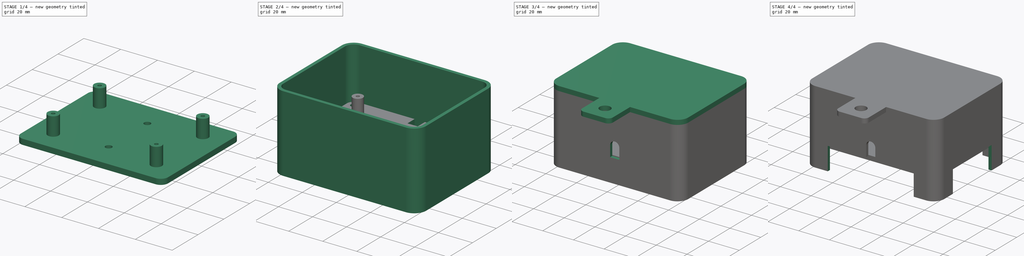
[diagram: build sequence overview — one tinted view per stage of 4, left to right]
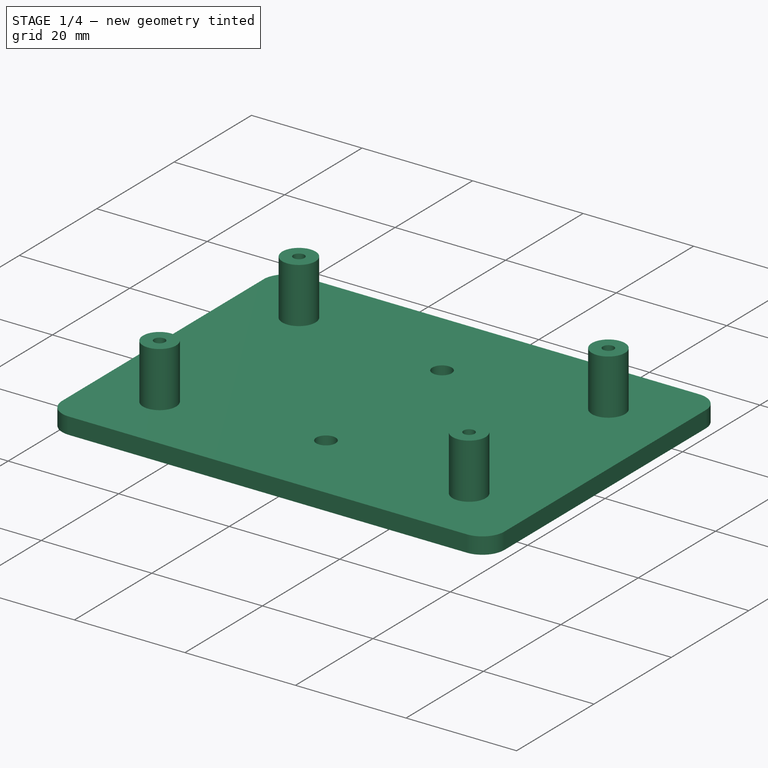
[diagram: stage 1 of 4 — iso view after this stage's code; geometry added in this stage tinted green]
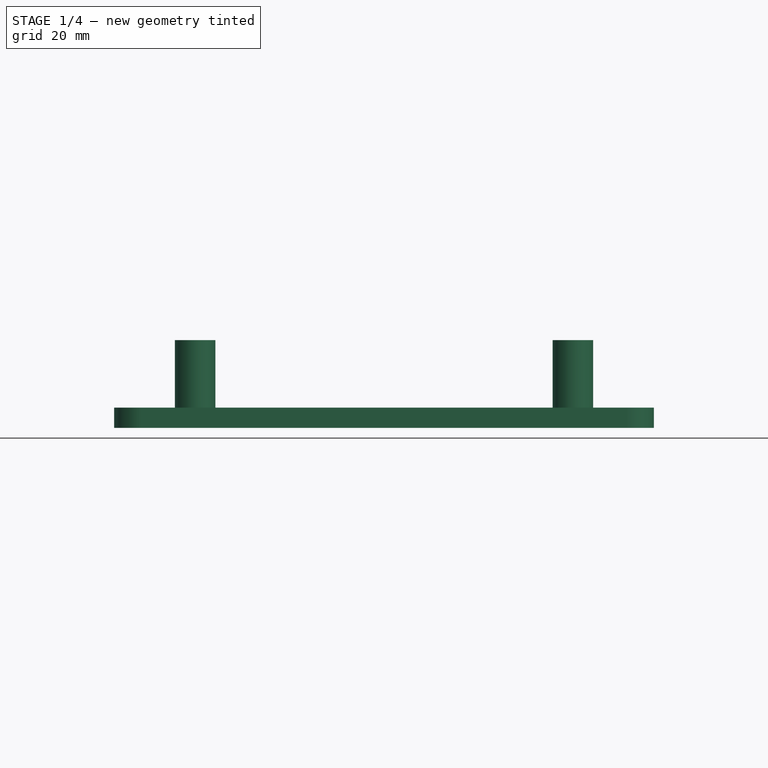
[diagram: stage 1 of 4 — front view after this stage's code; geometry added in this stage tinted green]
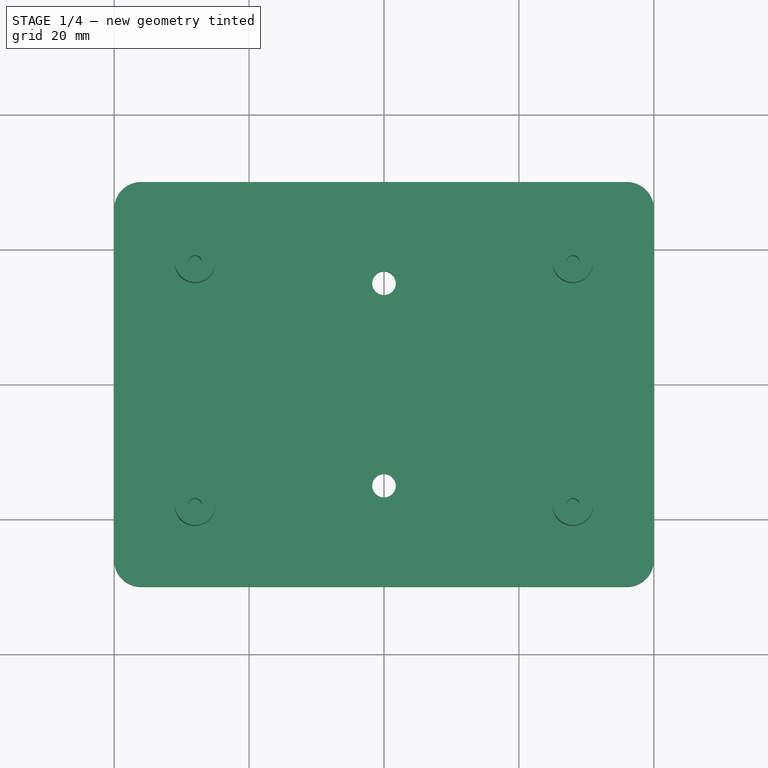
[diagram: stage 1 of 4 — top view after this stage's code; geometry added in this stage tinted green]
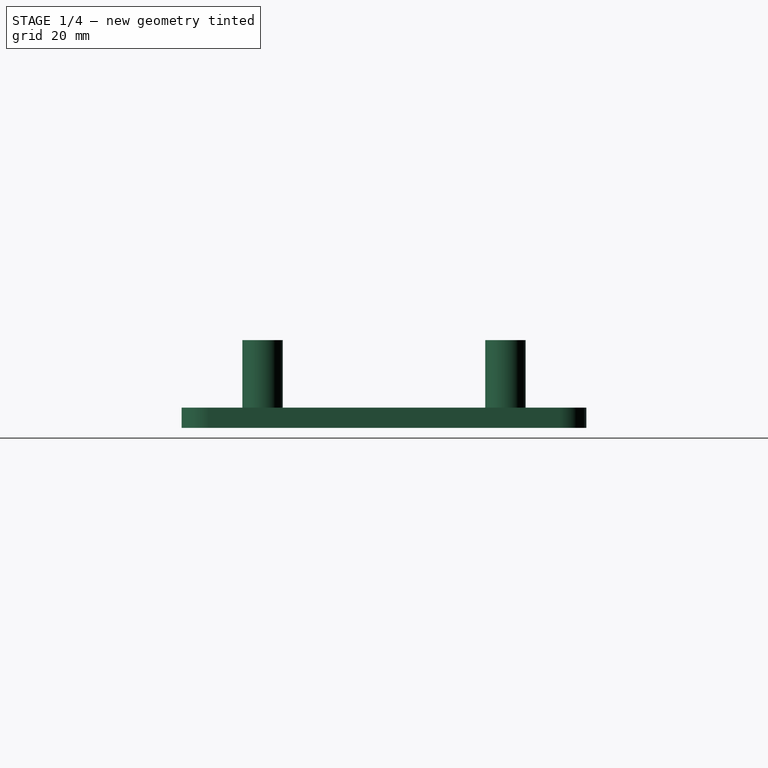
[diagram: stage 1 of 4 — right view after this stage's code; geometry added in this stage tinted green]
FCSTD DOCUMENT  (FreeCAD 1.0R39109 (Git))
Label: CellLora
License: All rights reserved
LicenseURL: https://en.wikipedia.org/wiki/All_rights_reserved
objects: Sketcher::SketchObject×13, PartDesign::Pocket×7, PartDesign::Pad×6, PartDesign::Body×2
note: 67 computed .brp shape members not serialized (recipe doc carries the construction recipe); baked Part::Feature solids carry a one-line shape summary decoded from their .brp

FEATURE [Sketcher::SketchObject] Sketch
  ArcFitTolerance = 1e-06
  AttachmentSupport = -> [XY_Plane003]
  FullyConstrained = true
  MakeInternals = false
  MapMode = 5
  sketch-geometry (14):
    g0: LineSegment StartX=-40 StartY=26 StartZ=0 EndX=-40 EndY=-26 EndZ=0
    g1: LineSegment StartX=-36 StartY=-30 StartZ=0 EndX=36 EndY=-30 EndZ=0
    g2: LineSegment StartX=40 StartY=-26 StartZ=0 EndX=40 EndY=26 EndZ=0
    g3: LineSegment StartX=36 StartY=30 StartZ=0 EndX=-36 EndY=30 EndZ=0
    g4: ArcOfCircle CenterX=-36 CenterY=26 CenterZ=0 NormalX=0 NormalY=0 NormalZ=1 AngleXU=0 Radius=4 StartAngle=1.5708 EndAngle=3.14159
    g5: ArcOfCircle CenterX=-36 CenterY=-26 CenterZ=0 NormalX=0 NormalY=0 NormalZ=1 AngleXU=0 Radius=4 StartAngle=3.14159 EndAngle=4.71239
    g6: ArcOfCircle CenterX=36 CenterY=-26 CenterZ=0 NormalX=0 NormalY=0 NormalZ=1 AngleXU=0 Radius=4 StartAngle=4.71239 EndAngle=6.28319
    g7: ArcOfCircle CenterX=36 CenterY=26 CenterZ=0 NormalX=0 NormalY=0 NormalZ=1 AngleXU=0 Radius=4 StartAngle=-3.082e-13 EndAngle=1.5708
    g8: GeomPoint [constr] X=-40 Y=30 Z=0
    g9: GeomPoint [constr] X=40 Y=-30 Z=0
    g10: LineSegment [constr] StartX=0 StartY=15 StartZ=0 EndX=0 EndY=-15 EndZ=0
    g11: Circle CenterX=0 CenterY=15 CenterZ=0 NormalX=0 NormalY=0 NormalZ=1 AngleXU=0 Radius=1.75
    g12: Circle CenterX=0 CenterY=-15 CenterZ=0 NormalX=0 NormalY=0 NormalZ=1 AngleXU=0 Radius=1.75
    g13: GeomPoint X=0 Y=0 Z=0
  constraints (33):
    c: Tangent(g0,g4) = -1.5708
    c: Tangent(g0,g5) = -1.5708
    c: Tangent(g1,g5) = -1.5708
    c: Tangent(g1,g6) = -1.5708
    c: Tangent(g2,g6) = -1.5708
    c: Tangent(g2,g7) = -1.5708
    c: Tangent(g3,g7) = -1.5708
    c: Tangent(g3,g4) = -1.5708
    c: Vertical(g0)
    c: Vertical(g2)
    c: Horizontal(g1)
    c: Horizontal(g3)
    c: Equal(g4,g5)
    c: Equal(g5,g6)
    c: Equal(g6,g7)
    c: PointOnObject(g8,g0)
    c: PointOnObject(g8,g3)
    c: PointOnObject(g9,g1)
    c: PointOnObject(g9,g2)
    c: PointOnObject(g10,g-2)
    c: PointOnObject(g10,g-2)
    c: Coincident(g11,g10)
    c: Coincident(g12,g10)
    c: Equal(g11,g12)
    c: Diameter(g11) = 3.5
    c: Distance(g10) = 30
    c: Radius(g7) = 4
    c: Symmetric(g10,g10,g13)
    c: DistanceY(g-1,g13) = 0
    c: DistanceX(g9) = 40
    c: DistanceY(g9) = -30
    c: DistanceX(g8,g-1) = 40
    c: DistanceY(g13,g8) = 30
FEATURE [PartDesign::Pad] Pad
  Direction = (0,0,1)
  Length = 3
  Length2 = 10
  Profile = -> Sketch
  ReferenceAxis = -> Sketch [N_Axis]
  Reversed = true
  Suppressed = false
  Type = 0
FEATURE [Sketcher::SketchObject] Sketch001
  ArcFitTolerance = 1e-06
  AttachmentSupport = -> [XY_Plane003]
  FullyConstrained = true
  MakeInternals = false
  MapMode = 5
  sketch-geometry (8):
    g0: LineSegment [constr] StartX=-28 StartY=18 StartZ=0 EndX=-28 EndY=-18 EndZ=0
    g1: LineSegment [constr] StartX=-28 StartY=-18 StartZ=0 EndX=28 EndY=-18 EndZ=0
    g2: LineSegment [constr] StartX=28 StartY=-18 StartZ=0 EndX=28 EndY=18 EndZ=0
    g3: LineSegment [constr] StartX=28 StartY=18 StartZ=0 EndX=-28 EndY=18 EndZ=0
    g4: Circle CenterX=28 CenterY=18 CenterZ=0 NormalX=0 NormalY=0 NormalZ=1 AngleXU=0 Radius=3
    g5: Circle CenterX=28 CenterY=-18 CenterZ=0 NormalX=0 NormalY=0 NormalZ=1 AngleXU=0 Radius=3
    g6: Circle CenterX=-28 CenterY=-18 CenterZ=0 NormalX=0 NormalY=0 NormalZ=1 AngleXU=0 Radius=3
    g7: Circle CenterX=-28 CenterY=18 CenterZ=0 NormalX=0 NormalY=0 NormalZ=1 AngleXU=0 Radius=3
  constraints (19):
    c: Coincident(g0,g1)
    c: Coincident(g1,g2)
    c: Coincident(g2,g3)
    c: Coincident(g3,g0)
    c: Vertical(g0)
    c: Vertical(g2)
    c: Horizontal(g1)
    c: Horizontal(g3)
    c: DistanceX(g3,g3) = 56
    c: DistanceY(g0,g0) = 36
    c: Symmetric(g0,g1,g-1)
    c: Coincident(g4,g2)
    c: Coincident(g5,g1)
    c: Coincident(g6,g0)
    c: Coincident(g7,g0)
    c: Equal(g7,g4)
    c: Equal(g4,g5)
    c: Equal(g5,g6)
    c: Diameter(g4) = 6
FEATURE [PartDesign::Pad] Pad001
  BaseFeature = -> Pad
  Direction = (0,0,1)
  Length = 10
  Length2 = 10
  Profile = -> Sketch001
  ReferenceAxis = -> Sketch001 [N_Axis]
  Suppressed = false
  Type = 0
FEATURE [Sketcher::SketchObject] Sketch002
  ArcFitTolerance = 1e-06
  AttachmentSupport = -> [XY_Plane003]
  FullyConstrained = true
  MakeInternals = false
  MapMode = 5
  sketch-geometry (8):
    g0: LineSegment [constr] StartX=-28 StartY=18 StartZ=0 EndX=-28 EndY=-18 EndZ=0
    g1: LineSegment [constr] StartX=-28 StartY=-18 StartZ=0 EndX=28 EndY=-18 EndZ=0
    g2: LineSegment [constr] StartX=28 StartY=-18 StartZ=0 EndX=28 EndY=18 EndZ=0
    g3: LineSegment [constr] StartX=28 StartY=18 StartZ=0 EndX=-28 EndY=18 EndZ=0
    g4: Circle CenterX=28 CenterY=18 CenterZ=0 NormalX=0 NormalY=0 NormalZ=1 AngleXU=0 Radius=1
    g5: Circle CenterX=28 CenterY=-18 CenterZ=0 NormalX=0 NormalY=0 NormalZ=1 AngleXU=0 Radius=1
    g6: Circle CenterX=-28 CenterY=-18 CenterZ=0 NormalX=0 NormalY=0 NormalZ=1 AngleXU=0 Radius=1
    g7: Circle CenterX=-28 CenterY=18 CenterZ=0 NormalX=0 NormalY=0 NormalZ=1 AngleXU=0 Radius=1
  constraints (19):
    c: Coincident(g0,g1)
    c: Coincident(g1,g2)
    c: Coincident(g2,g3)
    c: Coincident(g3,g0)
    c: Vertical(g0)
    c: Vertical(g2)
    c: Horizontal(g1)
    c: Horizontal(g3)
    c: DistanceX(g3,g3) = 56
    c: DistanceY(g0,g0) = 36
    c: Symmetric(g0,g1,g-1)
    c: Coincident(g4,g2)
    c: Coincident(g5,g1)
    c: Coincident(g6,g0)
    c: Coincident(g7,g0)
    c: Equal(g7,g4)
    c: Equal(g4,g5)
    c: Equal(g5,g6)
    c: Diameter(g4) = 2
FEATURE [PartDesign::Pocket] Pocket
  BaseFeature = -> Pad001
  Direction = (0,0,-1)
  Length = 10
  Length2 = 5
  Profile = -> Sketch002
  ReferenceAxis = -> Sketch002 [N_Axis]
  Reversed = true
  Suppressed = false
  Type = 0
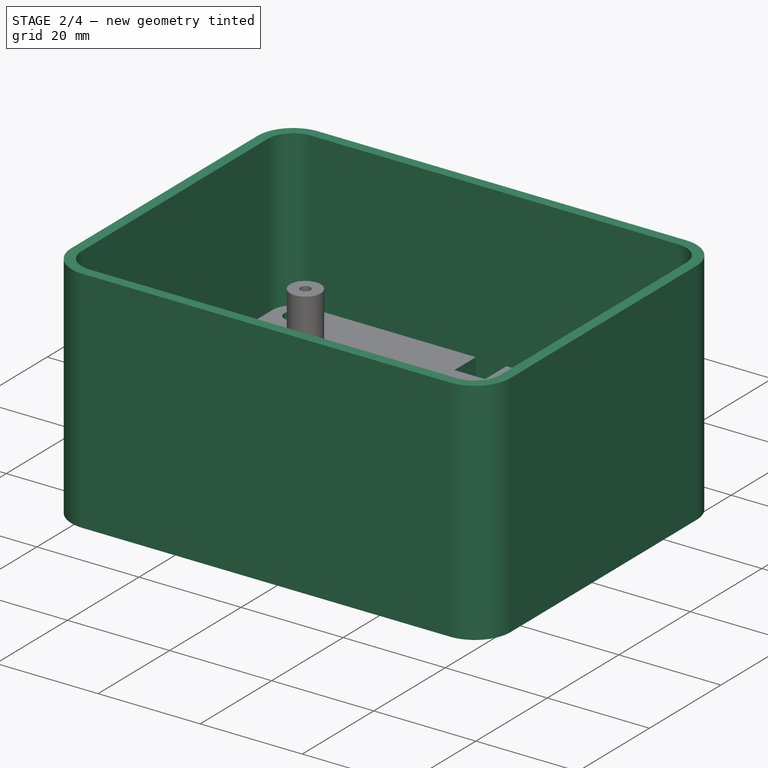
[diagram: stage 2 of 4 — iso view after this stage's code; geometry added in this stage tinted green]
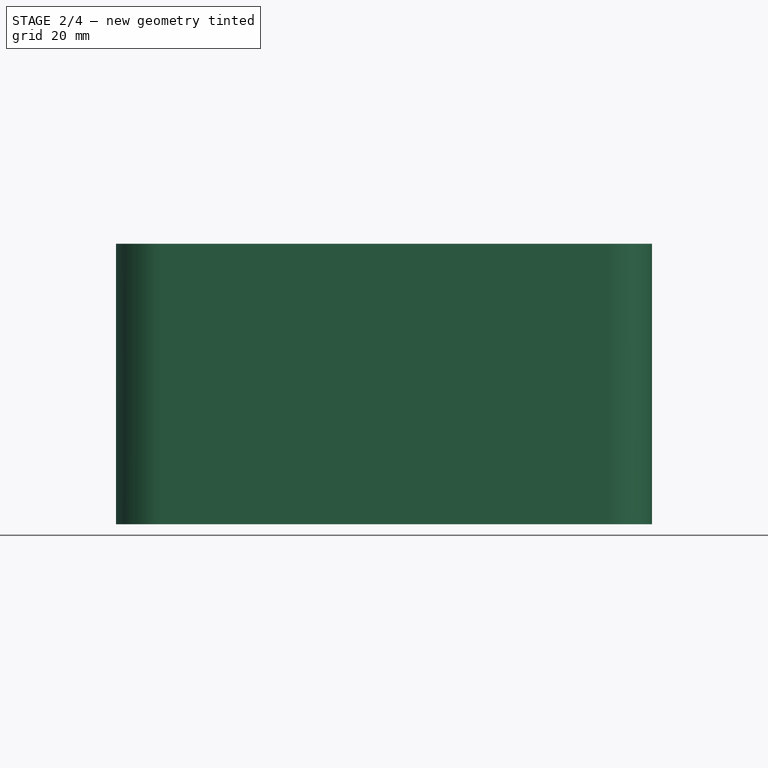
[diagram: stage 2 of 4 — front view after this stage's code; geometry added in this stage tinted green]
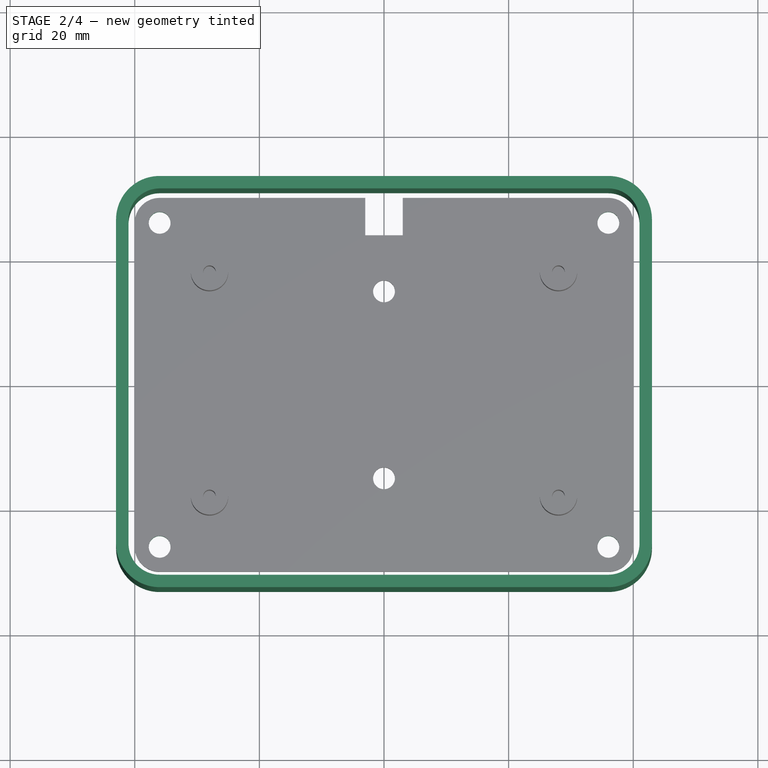
[diagram: stage 2 of 4 — top view after this stage's code; geometry added in this stage tinted green]
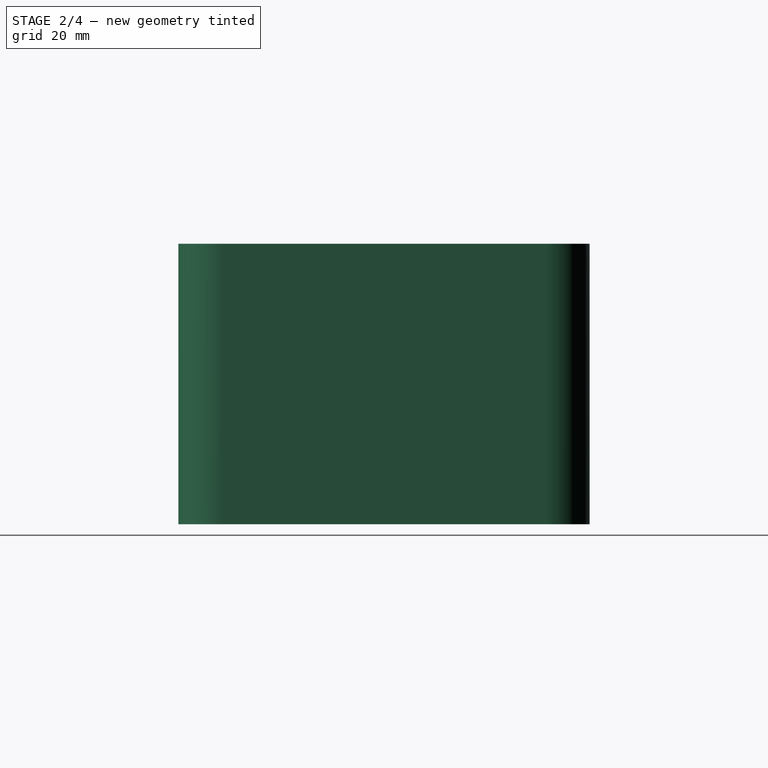
[diagram: stage 2 of 4 — right view after this stage's code; geometry added in this stage tinted green]
FEATURE [Sketcher::SketchObject] Sketch004
  ArcFitTolerance = 1e-06
  AttachmentOffset = pos=(0,0,30) rot=(0,0,1;0rad)
  AttachmentSupport = -> [XY_Plane004]
  FullyConstrained = true
  MakeInternals = false
  MapMode = 5
  Placement = pos=(0,0,30) rot=(0,0,1;0rad)
  sketch-geometry (20):
    g0: LineSegment StartX=-41 StartY=26 StartZ=0 EndX=-41 EndY=-26 EndZ=0
    g1: LineSegment StartX=-36 StartY=-31 StartZ=0 EndX=36 EndY=-31 EndZ=0
    g2: LineSegment StartX=41 StartY=-26 StartZ=0 EndX=41 EndY=26 EndZ=0
    g3: LineSegment StartX=36 StartY=31 StartZ=0 EndX=-36 EndY=31 EndZ=0
    g4: ArcOfCircle CenterX=-36 CenterY=26 CenterZ=0 NormalX=0 NormalY=0 NormalZ=1 AngleXU=0 Radius=5 StartAngle=1.5708 EndAngle=3.14159
    g5: ArcOfCircle CenterX=-36 CenterY=-26 CenterZ=0 NormalX=0 NormalY=0 NormalZ=1 AngleXU=0 Radius=5 StartAngle=3.14159 EndAngle=4.71239
    g6: ArcOfCircle CenterX=36 CenterY=-26 CenterZ=0 NormalX=0 NormalY=0 NormalZ=1 AngleXU=0 Radius=5 StartAngle=4.71239 EndAngle=6.28319
    g7: ArcOfCircle CenterX=36 CenterY=26 CenterZ=0 NormalX=0 NormalY=0 NormalZ=1 AngleXU=0 Radius=5 StartAngle=0 EndAngle=1.5708
    g8: GeomPoint [constr] X=-41 Y=31 Z=0
    g9: GeomPoint [constr] X=41 Y=-31 Z=0
    g10: LineSegment StartX=-43 StartY=26 StartZ=0 EndX=-43 EndY=-26 EndZ=0
    g11: LineSegment StartX=-36 StartY=-33 StartZ=0 EndX=36 EndY=-33 EndZ=0
    g12: LineSegment StartX=43 StartY=-26 StartZ=0 EndX=43 EndY=26 EndZ=0
    g13: LineSegment StartX=36 StartY=33 StartZ=0 EndX=-36 EndY=33 EndZ=0
    g14: ArcOfCircle CenterX=-36 CenterY=26 CenterZ=0 NormalX=0 NormalY=0 NormalZ=1 AngleXU=0 Radius=7 StartAngle=1.5708 EndAngle=3.14159
    g15: ArcOfCircle CenterX=-36 CenterY=-26 CenterZ=0 NormalX=0 NormalY=0 NormalZ=1 AngleXU=0 Radius=7 StartAngle=3.14159 EndAngle=4.71239
    g16: ArcOfCircle CenterX=36 CenterY=-26 CenterZ=0 NormalX=0 NormalY=0 NormalZ=1 AngleXU=0 Radius=7 StartAngle=4.71239 EndAngle=6.28319
    g17: ArcOfCircle CenterX=36 CenterY=26 CenterZ=0 NormalX=0 NormalY=0 NormalZ=1 AngleXU=0 Radius=7 StartAngle=2e-16 EndAngle=1.5708
    g18: GeomPoint [constr] X=-43 Y=33 Z=0
    g19: GeomPoint [constr] X=43 Y=-33 Z=0
  constraints (46):
    c: Tangent(g0,g4) = -1.5708
    c: Tangent(g0,g5) = -1.5708
    c: Tangent(g1,g5) = -1.5708
    c: Tangent(g1,g6) = -1.5708
    c: Tangent(g2,g6) = -1.5708
    c: Tangent(g2,g7) = -1.5708
    c: Tangent(g3,g7) = -1.5708
    c: Tangent(g3,g4) = -1.5708
    c: Vertical(g0)
    c: Vertical(g2)
    c: Horizontal(g1)
    c: Horizontal(g3)
    c: Equal(g4,g5)
    c: Equal(g5,g6)
    c: Equal(g6,g7)
    c: PointOnObject(g8,g0)
    c: PointOnObject(g8,g3)
    c: PointOnObject(g9,g1)
    c: PointOnObject(g9,g2)
    c: Radius(g7) = 5
    c: DistanceX(g8) = -41
    c: DistanceY(g8) = 31
    c: DistanceX(g9) = 41
    c: DistanceY(g9) = -31
    c: Tangent(g10,g14) = -1.5708
    c: Tangent(g10,g15) = -1.5708
    c: Tangent(g11,g15) = -1.5708
    c: Tangent(g11,g16) = -1.5708
    c: Tangent(g12,g16) = -1.5708
    c: Tangent(g12,g17) = -1.5708
    c: Tangent(g13,g17) = -1.5708
    c: Tangent(g13,g14) = -1.5708
    c: Vertical(g10)
    c: Vertical(g12)
    c: Horizontal(g11)
    c: Horizontal(g13)
    c: Equal(g14,g15)
    c: Equal(g15,g16)
    c: Equal(g16,g17)
    c: PointOnObject(g18,g10)
    c: PointOnObject(g18,g13)
    c: PointOnObject(g19,g11)
    c: PointOnObject(g19,g12)
    c: Radius(g17) = 7
    c: Coincident(g16,g6)
    c: Coincident(g14,g4)
FEATURE [PartDesign::Pad] Pad003
  Direction = (0,0,1)
  Length = 45
  Length2 = 10
  Profile = -> Sketch004
  ReferenceAxis = -> Sketch004 [N_Axis]
  Reversed = true
  Suppressed = false
  Type = 0
FEATURE [PartDesign::Pocket] Pocket003
  BaseFeature = -> Pocket
  Direction = (0,0,-1)
  Length = 3
  Length2 = 5
  Profile = -> Sketch009
  ReferenceAxis = -> Sketch009 [N_Axis]
  Suppressed = false
  Type = 0
FEATURE [PartDesign::Body] Body004  label="Top"
  AllowCompound = false
  Group = -> [Sketch004,Pad003,Sketch005,Pad004,Sketch006,Pad005,Sketch007,Pocket001,Sketch008,Pocket002,Sketch010,Pad007,Sketch011,Pocket004,Sketch012,Pocket005]
  Origin = -> Origin004
  Placement = pos=(0,0,-5) rot=(0,0,1;0rad)
  Tip = -> Pocket005
FEATURE [Sketcher::SketchObject] Sketch013
  ArcFitTolerance = 1e-06
  AttachmentSupport = -> [XY_Plane003]
  FullyConstrained = true
  MakeInternals = false
  MapMode = 5
  sketch-geometry (5):
    g0: LineSegment StartX=-3 StartY=30 StartZ=0 EndX=-3 EndY=24 EndZ=0
    g1: LineSegment StartX=-3 StartY=24 StartZ=0 EndX=3 EndY=24 EndZ=0
    g2: LineSegment StartX=3 StartY=24 StartZ=0 EndX=3 EndY=30 EndZ=0
    g3: LineSegment StartX=3 StartY=30 StartZ=0 EndX=-3 EndY=30 EndZ=0
    g4: GeomPoint X=0 Y=30 Z=0
  constraints (13):
    c: Coincident(g0,g1)
    c: Coincident(g1,g2)
    c: Coincident(g2,g3)
    c: Coincident(g3,g0)
    c: Vertical(g0)
    c: Vertical(g2)
    c: Horizontal(g1)
    c: Horizontal(g3)
    c: Symmetric(g3,g3,g4)
    c: PointOnObject(g4,g-2)
    c: DistanceX(g1,g1) = 6
    c: DistanceY(g2,g2) = 6
    c: DistanceY(g-1,g4) = 30
FEATURE [PartDesign::Pocket] Pocket006
  BaseFeature = -> Pocket003
  Direction = (0,0,-1)
  Length = 5
  Length2 = 5
  Profile = -> Sketch013
  ReferenceAxis = -> Sketch013 [N_Axis]
  Suppressed = false
  Type = 0
FEATURE [PartDesign::Body] Body003  label="Base"
  AllowCompound = false
  Group = -> [Sketch,Pad,Sketch001,Pad001,Sketch002,Pocket,Sketch009,Pocket003,Sketch013,Pocket006]
  Origin = -> Origin003
  Tip = -> Pocket006
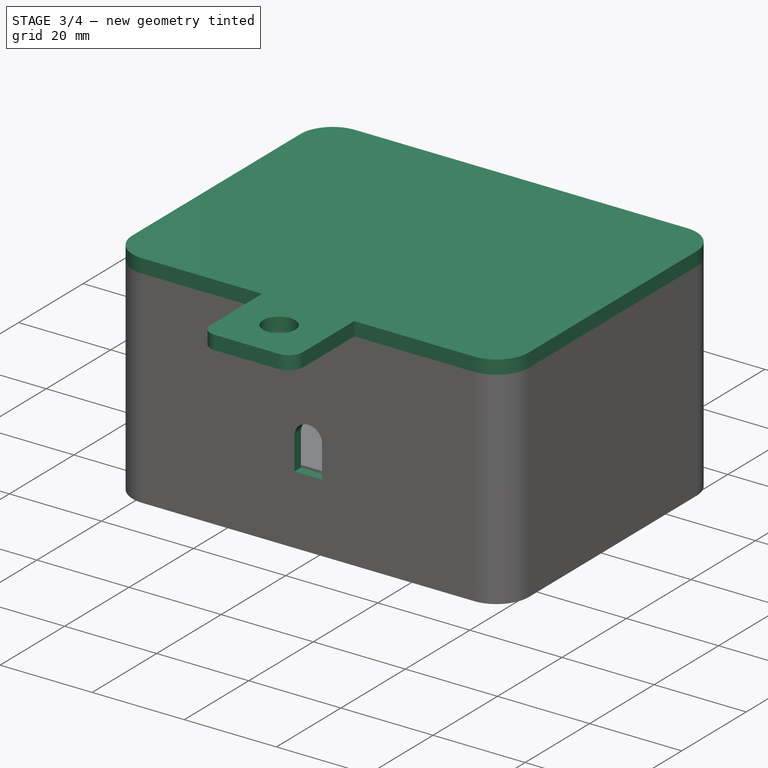
[diagram: stage 3 of 4 — iso view after this stage's code; geometry added in this stage tinted green]
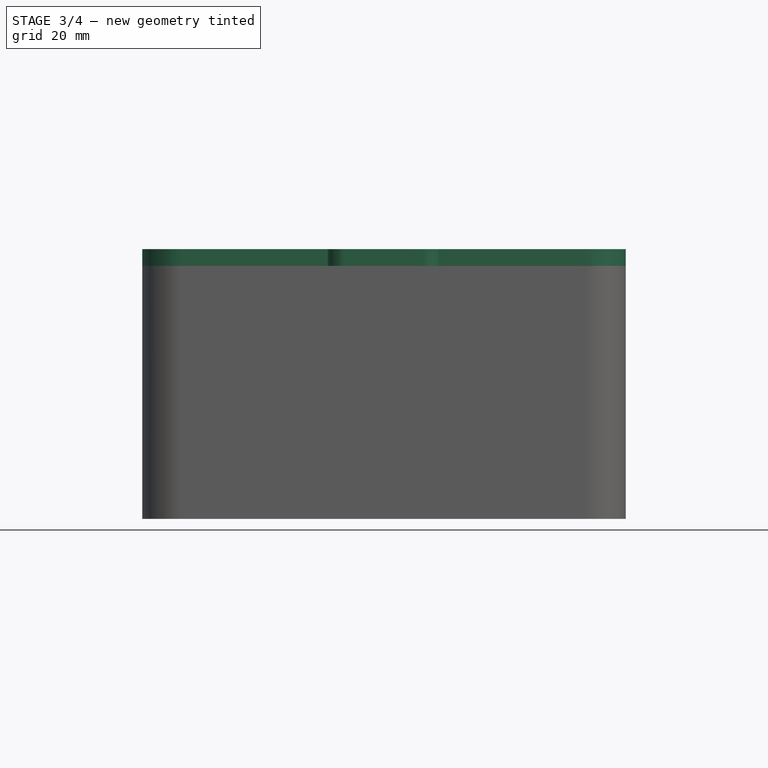
[diagram: stage 3 of 4 — front view after this stage's code; geometry added in this stage tinted green]
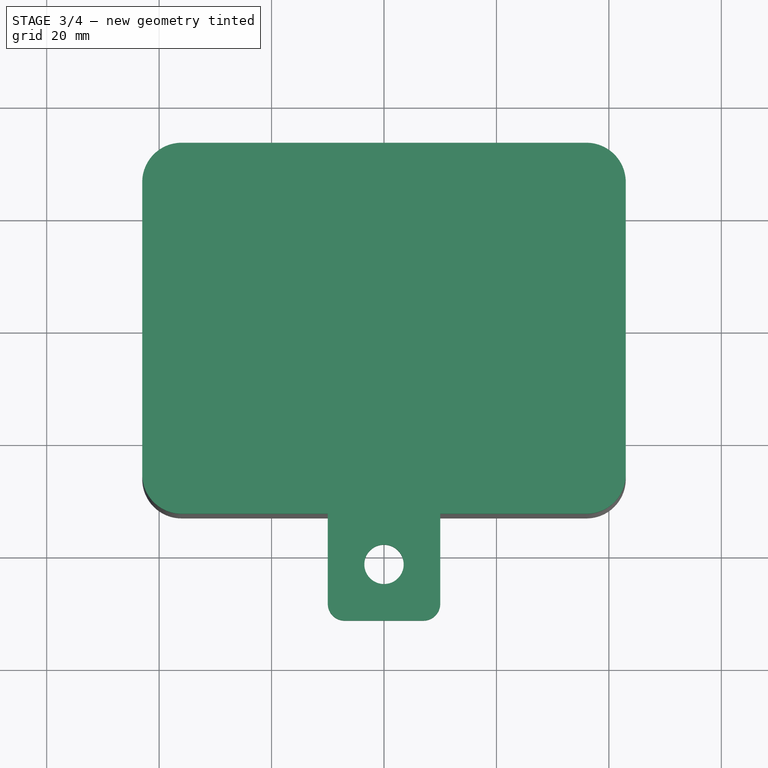
[diagram: stage 3 of 4 — top view after this stage's code; geometry added in this stage tinted green]
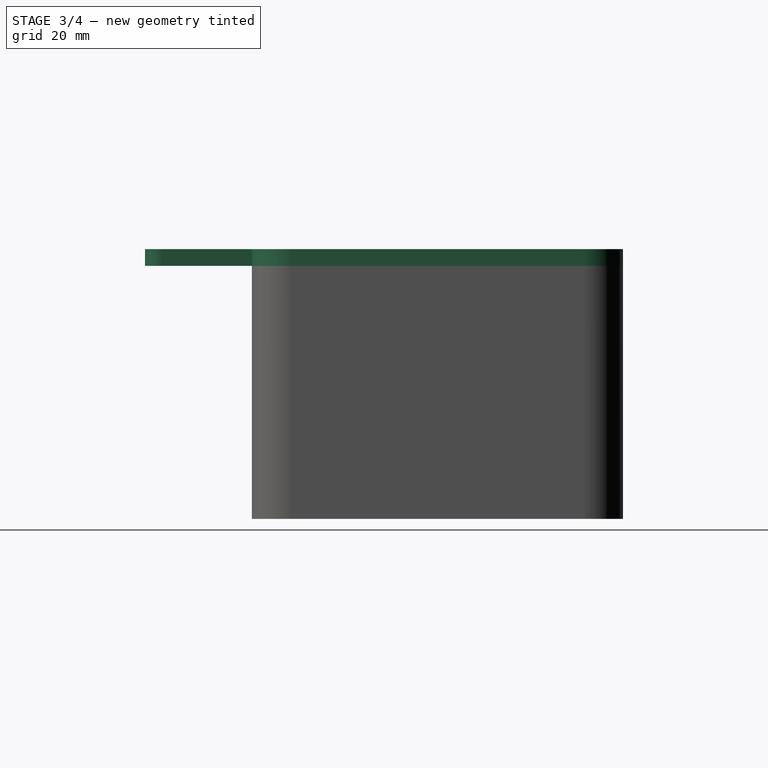
[diagram: stage 3 of 4 — right view after this stage's code; geometry added in this stage tinted green]
FEATURE [Sketcher::SketchObject] Sketch005
  ArcFitTolerance = 1e-06
  AttachmentOffset = pos=(0,0,30) rot=(0,0,1;0rad)
  AttachmentSupport = -> [XY_Plane004]
  FullyConstrained = true
  MakeInternals = false
  MapMode = 5
  Placement = pos=(0,0,30) rot=(0,0,1;0rad)
  sketch-geometry (10):
    g0: LineSegment StartX=-43 StartY=26 StartZ=0 EndX=-43 EndY=-26 EndZ=0
    g1: LineSegment StartX=-36 StartY=-33 StartZ=0 EndX=36 EndY=-33 EndZ=0
    g2: LineSegment StartX=43 StartY=-26 StartZ=0 EndX=43 EndY=26 EndZ=0
    g3: LineSegment StartX=36 StartY=33 StartZ=0 EndX=-36 EndY=33 EndZ=0
    g4: ArcOfCircle CenterX=-36 CenterY=26 CenterZ=0 NormalX=0 NormalY=0 NormalZ=1 AngleXU=0 Radius=7 StartAngle=1.5708 EndAngle=3.14159
    g5: ArcOfCircle CenterX=-36 CenterY=-26 CenterZ=0 NormalX=0 NormalY=0 NormalZ=1 AngleXU=0 Radius=7 StartAngle=3.14159 EndAngle=4.71239
    g6: ArcOfCircle CenterX=36 CenterY=-26 CenterZ=0 NormalX=0 NormalY=0 NormalZ=1 AngleXU=0 Radius=7 StartAngle=4.71239 EndAngle=6.28319
    g7: ArcOfCircle CenterX=36 CenterY=26 CenterZ=0 NormalX=0 NormalY=0 NormalZ=1 AngleXU=0 Radius=7 StartAngle=-9e-16 EndAngle=1.5708
    g8: GeomPoint [constr] X=-43 Y=33 Z=0
    g9: GeomPoint [constr] X=43 Y=-33 Z=0
  constraints (24):
    c: Tangent(g0,g4) = -1.5708
    c: Tangent(g0,g5) = -1.5708
    c: Tangent(g1,g5) = -1.5708
    c: Tangent(g1,g6) = -1.5708
    c: Tangent(g2,g6) = -1.5708
    c: Tangent(g2,g7) = -1.5708
    c: Tangent(g3,g7) = -1.5708
    c: Tangent(g3,g4) = -1.5708
    c: Vertical(g0)
    c: Vertical(g2)
    c: Horizontal(g1)
    c: Horizontal(g3)
    c: Equal(g4,g5)
    c: Equal(g5,g6)
    c: Equal(g6,g7)
    c: PointOnObject(g8,g0)
    c: PointOnObject(g8,g3)
    c: PointOnObject(g9,g1)
    c: PointOnObject(g9,g2)
    c: Radius(g7) = 7
    c: DistanceX(g8) = -43
    c: DistanceY(g8) = 33
    c: DistanceX(g9) = 43
    c: DistanceY(g9) = -33
FEATURE [PartDesign::Pad] Pad004
  BaseFeature = -> Pad003
  Direction = (0,0,1)
  Length = 3
  Length2 = 10
  Profile = -> Sketch005
  ReferenceAxis = -> Sketch005 [N_Axis]
  Suppressed = false
  Type = 0
FEATURE [Sketcher::SketchObject] Sketch006
  ArcFitTolerance = 1e-06
  AttachmentOffset = pos=(0,0,30) rot=(0,0,1;0rad)
  AttachmentSupport = -> [XY_Plane004]
  FullyConstrained = true
  MakeInternals = false
  MapMode = 5
  Placement = pos=(0,0,30) rot=(0,0,1;0rad)
  sketch-geometry (12):
    g0: LineSegment StartX=-10 StartY=-29 StartZ=0 EndX=-10 EndY=-49 EndZ=0
    g1: LineSegment StartX=-7 StartY=-52 StartZ=0 EndX=7 EndY=-52 EndZ=0
    g2: LineSegment StartX=10 StartY=-49 StartZ=0 EndX=10 EndY=-29 EndZ=0
    g3: LineSegment StartX=7 StartY=-26 StartZ=0 EndX=-7 EndY=-26 EndZ=0
    g4: ArcOfCircle CenterX=-7 CenterY=-29 CenterZ=0 NormalX=0 NormalY=0 NormalZ=1 AngleXU=0 Radius=3 StartAngle=1.5708 EndAngle=3.14159
    g5: ArcOfCircle CenterX=-7 CenterY=-49 CenterZ=0 NormalX=0 NormalY=0 NormalZ=1 AngleXU=0 Radius=3 StartAngle=3.14159 EndAngle=4.71239
    g6: ArcOfCircle CenterX=7 CenterY=-49 CenterZ=0 NormalX=0 NormalY=0 NormalZ=1 AngleXU=0 Radius=3 StartAngle=4.71239 EndAngle=6.28319
    g7: ArcOfCircle CenterX=7 CenterY=-29 CenterZ=0 NormalX=0 NormalY=0 NormalZ=1 AngleXU=0 Radius=3 StartAngle=2e-16 EndAngle=1.5708
    g8: GeomPoint [constr] X=-10 Y=-26 Z=0
    g9: GeomPoint [constr] X=10 Y=-52 Z=0
    g10: GeomPoint X=0 Y=-39 Z=0
    g11: Circle CenterX=0 CenterY=-42 CenterZ=0 NormalX=0 NormalY=0 NormalZ=1 AngleXU=0 Radius=3.5
  constraints (28):
    c: Tangent(g0,g4) = -1.5708
    c: Tangent(g0,g5) = -1.5708
    c: Tangent(g1,g5) = -1.5708
    c: Tangent(g1,g6) = -1.5708
    c: Tangent(g2,g6) = -1.5708
    c: Tangent(g2,g7) = -1.5708
    c: Tangent(g3,g7) = -1.5708
    c: Tangent(g3,g4) = -1.5708
    c: Vertical(g0)
    c: Vertical(g2)
    c: Horizontal(g1)
    c: Horizontal(g3)
    c: Equal(g4,g5)
    c: Equal(g5,g6)
    c: Equal(g6,g7)
    c: PointOnObject(g8,g0)
    c: PointOnObject(g8,g3)
    c: PointOnObject(g9,g1)
    c: PointOnObject(g9,g2)
    c: Radius(g5) = 3
    c: Symmetric(g9,g8,g10)
    c: PointOnObject(g10,g-2)
    c: DistanceX(g8,g9) = 20
    c: DistanceY(g4,g-1) = 29
    c: DistanceY(g6,g7) = 20
    c: PointOnObject(g11,g-2)
    c: Diameter(g11) = 7
    c: DistanceY(g9,g11) = 10
FEATURE [PartDesign::Pad] Pad005
  BaseFeature = -> Pad004
  Direction = (0,0,1)
  Length = 3
  Length2 = 10
  Profile = -> Sketch006
  ReferenceAxis = -> Sketch006 [N_Axis]
  Suppressed = false
  Type = 0
FEATURE [Sketcher::SketchObject] Sketch007
  ArcFitTolerance = 1e-06
  AttachmentOffset = pos=(0,0,31) rot=(0,0,1;0rad)
  AttachmentSupport = -> [XZ_Plane004]
  FullyConstrained = true
  MakeInternals = false
  MapMode = 5
  Placement = pos=(0,-31,6.9e-15) rot=(1,0,0;1.5708rad)
  sketch-geometry (4):
    g0: LineSegment StartX=-3 StartY=7 StartZ=0 EndX=-3 EndY=0 EndZ=0
    g1: LineSegment StartX=-3 StartY=0 StartZ=0 EndX=3 EndY=0 EndZ=0
    g2: LineSegment StartX=3 StartY=0 StartZ=0 EndX=3 EndY=7 EndZ=0
    g3: ArcOfCircle CenterX=0 CenterY=7 CenterZ=0 NormalX=0 NormalY=0 NormalZ=1 AngleXU=0 Radius=3 StartAngle=1.759e-13 EndAngle=3.14159
  constraints (11):
    c: Coincident(g0,g1)
    c: Coincident(g1,g2)
    c: Vertical(g0)
    c: Vertical(g2)
    c: Horizontal(g1)
    c: PointOnObject(g1,g-1)
    c: DistanceX(g-1,g1) = 3
    c: DistanceX(g0,g-1) = 3
    c: Tangent(g3,g2) = -1.5708
    c: Tangent(g3,g0) = -1.5708
    c: DistanceY(g-1,g3) = 7
FEATURE [PartDesign::Pocket] Pocket001
  BaseFeature = -> Pad005
  Direction = (0,1,-2e-16)
  Length = 2
  Length2 = 5
  Profile = -> Sketch007
  ReferenceAxis = -> Sketch007 [N_Axis]
  Reversed = true
  Suppressed = false
  Type = 0
FEATURE [Sketcher::SketchObject] Sketch008
  ArcFitTolerance = 1e-06
  AttachmentOffset = pos=(0,0,-41) rot=(0,0,1;0rad)
  AttachmentSupport = -> [YZ_Plane004]
  FullyConstrained = true
  MakeInternals = false
  MapMode = 5
  Placement = pos=(-41,0,0) rot=(0.57735,0.57735,0.57735;2.0944rad)
  sketch-geometry (4):
    g0: LineSegment StartX=18 StartY=20 StartZ=0 EndX=6 EndY=20 EndZ=0
    g1: LineSegment StartX=6 StartY=20 StartZ=0 EndX=6 EndY=0 EndZ=0
    g2: LineSegment StartX=6 StartY=0 StartZ=0 EndX=18 EndY=0 EndZ=0
    g3: LineSegment StartX=18 StartY=0 StartZ=0 EndX=18 EndY=20 EndZ=0
  constraints (12):
    c: Coincident(g0,g1)
    c: Coincident(g1,g2)
    c: Coincident(g2,g3)
    c: Coincident(g3,g0)
    c: Horizontal(g0)
    c: Horizontal(g2)
    c: Vertical(g1)
    c: Vertical(g3)
    c: PointOnObject(g1,g-1)
    c: DistanceX(g-1,g2) = 18
    c: DistanceX(g2,g2) = 12
    c: DistanceY(g-1,g0) = 20
FEATURE [PartDesign::Pocket] Pocket002
  BaseFeature = -> Pocket001
  Direction = (-1,0,0)
  Length = 2
  Length2 = 5
  Profile = -> Sketch008
  ReferenceAxis = -> Sketch008 [N_Axis]
  Suppressed = false
  Type = 0
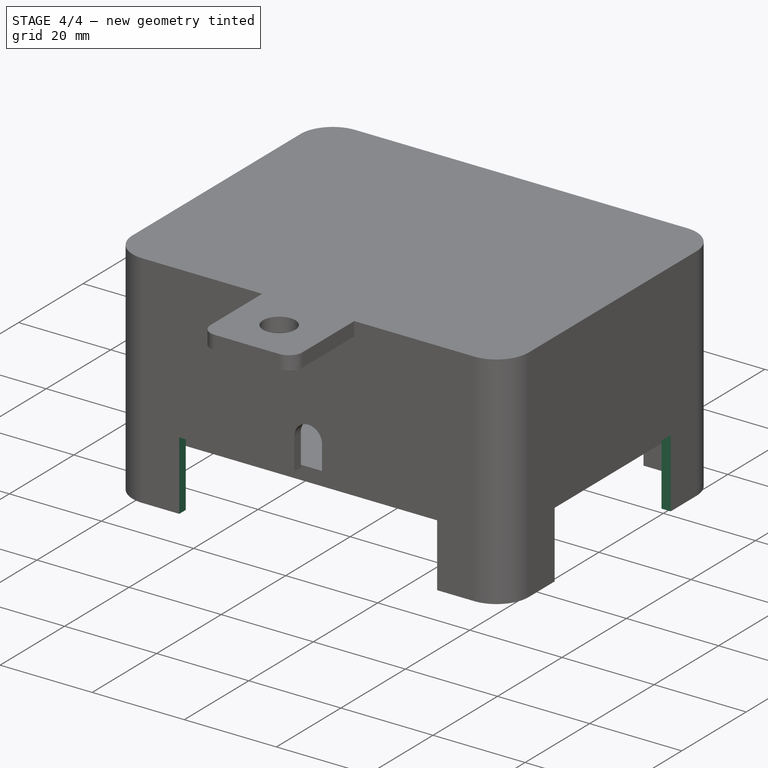
[diagram: stage 4 of 4 — iso view after this stage's code; geometry added in this stage tinted green]
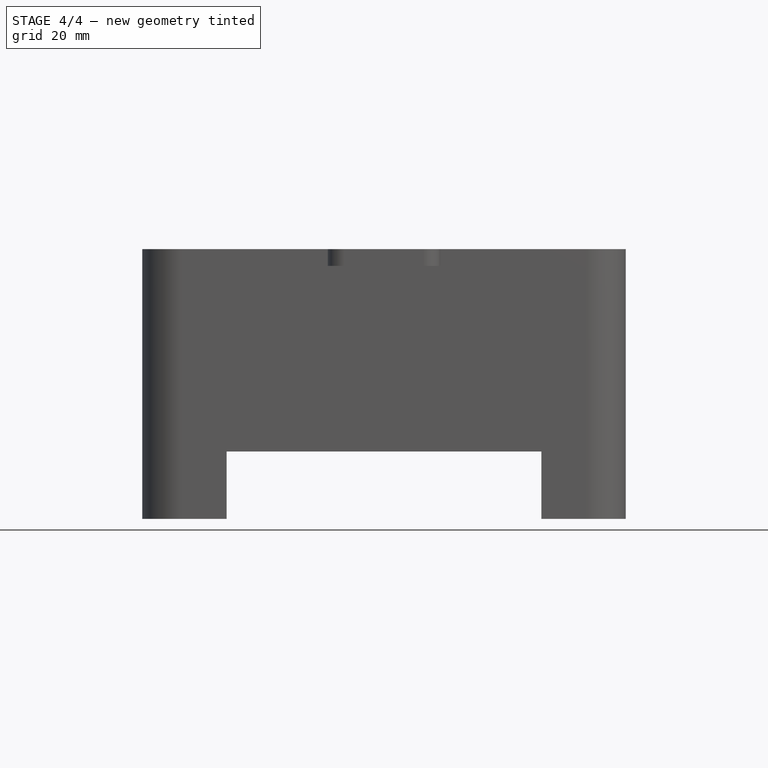
[diagram: stage 4 of 4 — front view after this stage's code; geometry added in this stage tinted green]
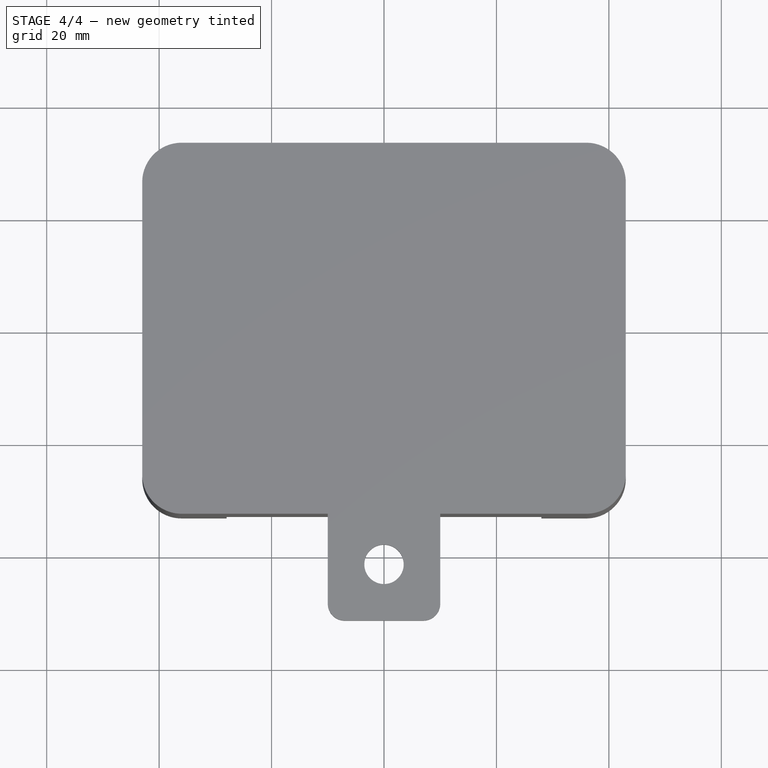
[diagram: stage 4 of 4 — top view after this stage's code; geometry added in this stage tinted green]
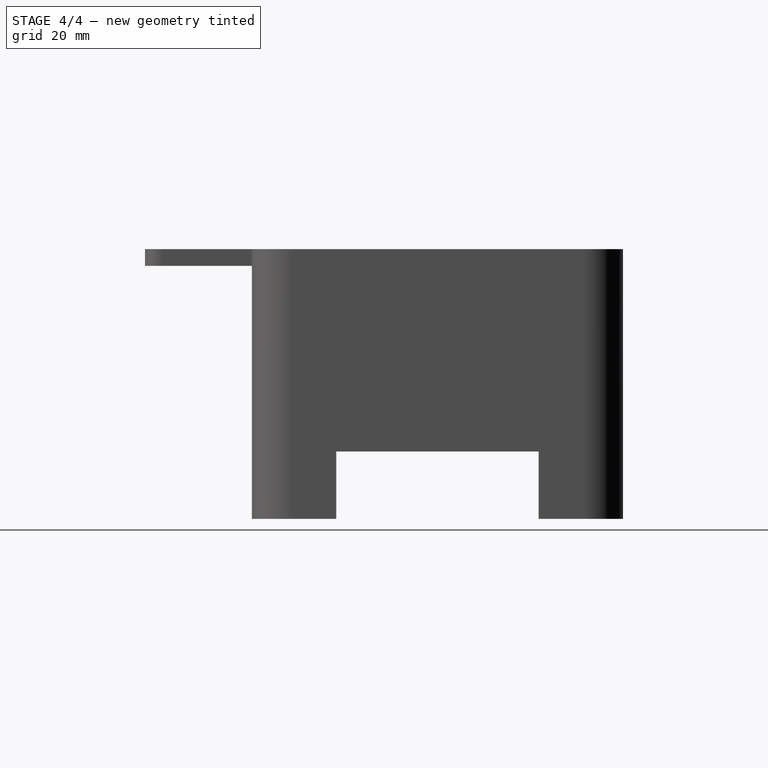
[diagram: stage 4 of 4 — right view after this stage's code; geometry added in this stage tinted green]
FEATURE [Sketcher::SketchObject] Sketch009
  ArcFitTolerance = 1e-06
  AttachmentSupport = -> [XY_Plane003]
  FullyConstrained = true
  MakeInternals = false
  MapMode = 5
  sketch-geometry (8):
    g0: LineSegment [constr] StartX=-36 StartY=26 StartZ=0 EndX=-36 EndY=-26 EndZ=0
    g1: LineSegment [constr] StartX=-36 StartY=-26 StartZ=0 EndX=36 EndY=-26 EndZ=0
    g2: LineSegment [constr] StartX=36 StartY=-26 StartZ=0 EndX=36 EndY=26 EndZ=0
    g3: LineSegment [constr] StartX=36 StartY=26 StartZ=0 EndX=-36 EndY=26 EndZ=0
    g4: Circle CenterX=-36 CenterY=26 CenterZ=0 NormalX=0 NormalY=0 NormalZ=1 AngleXU=0 Radius=1.75
    g5: Circle CenterX=36 CenterY=26 CenterZ=0 NormalX=0 NormalY=0 NormalZ=1 AngleXU=0 Radius=1.75
    g6: Circle CenterX=36 CenterY=-26 CenterZ=0 NormalX=0 NormalY=0 NormalZ=1 AngleXU=0 Radius=1.75
    g7: Circle CenterX=-36 CenterY=-26 CenterZ=0 NormalX=0 NormalY=0 NormalZ=1 AngleXU=0 Radius=1.75
  constraints (20):
    c: Coincident(g0,g1)
    c: Coincident(g1,g2)
    c: Coincident(g2,g3)
    c: Coincident(g3,g0)
    c: Vertical(g0)
    c: Vertical(g2)
    c: Horizontal(g1)
    c: Horizontal(g3)
    c: DistanceX(g0) = -36
    c: DistanceY(g0) = 26
    c: DistanceX(g1) = 36
    c: DistanceY(g1) = -26
    c: Coincident(g4,g0)
    c: Coincident(g5,g2)
    c: Coincident(g6,g1)
    c: Coincident(g7,g0)
    c: Equal(g7,g6)
    c: Equal(g6,g5)
    c: Equal(g5,g4)
    c: Diameter(g5) = 3.5
FEATURE [Sketcher::SketchObject] Sketch010
  ArcFitTolerance = 1e-06
  AttachmentOffset = pos=(0,0,30) rot=(0,0,1;0rad)
  AttachmentSupport = -> [XY_Plane004]
  FullyConstrained = true
  MakeInternals = false
  MapMode = 5
  Placement = pos=(0,0,30) rot=(0,0,1;0rad)
  sketch-geometry (28):
    g0: LineSegment [constr] StartX=-36 StartY=26 StartZ=0 EndX=-36 EndY=-26 EndZ=0
    g1: LineSegment [constr] StartX=-36 StartY=-26 StartZ=0 EndX=36 EndY=-26 EndZ=0
    g2: LineSegment [constr] StartX=36 StartY=-26 StartZ=0 EndX=36 EndY=26 EndZ=0
    g3: LineSegment [constr] StartX=36 StartY=26 StartZ=0 EndX=-36 EndY=26 EndZ=0
    g4: ArcOfCircle CenterX=36 CenterY=26 CenterZ=0 NormalX=0 NormalY=0 NormalZ=1 AngleXU=0 Radius=5 StartAngle=1e-16 EndAngle=1.5708
    g5: ArcOfCircle CenterX=36 CenterY=26 CenterZ=0 NormalX=0 NormalY=0 NormalZ=1 AngleXU=0 Radius=4 StartAngle=3.14159 EndAngle=4.71239
    g6: LineSegment StartX=36 StartY=31 StartZ=0 EndX=32 EndY=31 EndZ=0
    g7: LineSegment StartX=32 StartY=26 StartZ=0 EndX=32 EndY=31 EndZ=0
    g8: LineSegment StartX=36 StartY=22 StartZ=0 EndX=41 EndY=22 EndZ=0
    g9: LineSegment StartX=41 StartY=26 StartZ=0 EndX=41 EndY=22 EndZ=0
    g10: ArcOfCircle CenterX=36 CenterY=-26 CenterZ=0 NormalX=0 NormalY=0 NormalZ=1 AngleXU=0 Radius=5 StartAngle=4.71239 EndAngle=6.28319
    g11: ArcOfCircle CenterX=36 CenterY=-26 CenterZ=0 NormalX=0 NormalY=0 NormalZ=1 AngleXU=0 Radius=4 StartAngle=1.5708 EndAngle=3.14159
    g12: ArcOfCircle CenterX=-36 CenterY=-26 CenterZ=0 NormalX=0 NormalY=0 NormalZ=1 AngleXU=0 Radius=4 StartAngle=2e-16 EndAngle=1.5708
    g13: ArcOfCircle CenterX=-36 CenterY=-26 CenterZ=0 NormalX=0 NormalY=0 NormalZ=1 AngleXU=0 Radius=5 StartAngle=3.14159 EndAngle=4.71239
    g14: ArcOfCircle CenterX=-36 CenterY=26 CenterZ=0 NormalX=0 NormalY=0 NormalZ=1 AngleXU=0 Radius=5 StartAngle=1.5708 EndAngle=3.14159
    g15: ArcOfCircle CenterX=-36 CenterY=26 CenterZ=0 NormalX=0 NormalY=0 NormalZ=1 AngleXU=0 Radius=4 StartAngle=4.71239 EndAngle=6.28319
    g16: LineSegment StartX=-36 StartY=31 StartZ=0 EndX=-32 EndY=31 EndZ=0
    g17: LineSegment StartX=-32 StartY=31 StartZ=0 EndX=-32 EndY=26 EndZ=0
    g18: LineSegment StartX=-36 StartY=22 StartZ=0 EndX=-41 EndY=22 EndZ=0
    g19: LineSegment StartX=-41 StartY=26 StartZ=0 EndX=-41 EndY=22 EndZ=0
    g20: LineSegment StartX=-41 StartY=-26 StartZ=0 EndX=-41 EndY=-22 EndZ=0
    g21: LineSegment StartX=-41 StartY=-22 StartZ=0 EndX=-36 EndY=-22 EndZ=0
    g22: LineSegment StartX=-32 StartY=-26 StartZ=0 EndX=-32 EndY=-31 EndZ=0
    g23: LineSegment StartX=-36 StartY=-31 StartZ=0 EndX=-32 EndY=-31 EndZ=0
    g24: LineSegment StartX=32 StartY=-26 StartZ=0 EndX=32 EndY=-31 EndZ=0
    g25: LineSegment StartX=32 StartY=-31 StartZ=0 EndX=36 EndY=-31 EndZ=0
    g26: LineSegment StartX=36 StartY=-22 StartZ=0 EndX=41 EndY=-22 EndZ=0
    g27: LineSegment StartX=41 StartY=-22 StartZ=0 EndX=41 EndY=-26 EndZ=0
  constraints (76):
    c: Coincident(g0,g1)
    c: Coincident(g1,g2)
    c: Coincident(g2,g3)
    c: Coincident(g3,g0)
    c: Vertical(g0)
    c: Vertical(g2)
    c: Horizontal(g1)
    c: Horizontal(g3)
    c: DistanceX(g0) = -36
    c: DistanceY(g0) = 26
    c: DistanceX(g1) = 36
    c: DistanceY(g1) = -26
    c: Coincident(g4,g2)
    c: Coincident(g5,g2)
    c: PointOnObject(g5,g3)
    c: PointOnObject(g5,g2)
    c: Horizontal(g6)
    c: Coincident(g7,g5)
    c: Coincident(g7,g6)
    c: Coincident(g8,g5)
    c: Coincident(g9,g8)
    c: Horizontal(g8)
    c: Vertical(g7)
    c: Vertical(g9)
    c: Radius(g4) = 5
    c: Radius(g5) = 4
    c: Tangent(g6,g4) = -1.5708
    c: Tangent(g9,g4) = 1.5708
    c: Coincident(g10,g1)
    c: Coincident(g11,g1)
    c: Coincident(g12,g0)
    c: Coincident(g13,g0)
    c: Coincident(g14,g0)
    c: Coincident(g15,g0)
    c: PointOnObject(g15,g3)
    c: PointOnObject(g15,g0)
    c: PointOnObject(g11,g2)
    c: PointOnObject(g11,g1)
    c: PointOnObject(g12,g1)
    c: PointOnObject(g12,g0)
    c: Equal(g4,g10)
    c: Equal(g10,g13)
    c: Equal(g13,g14)
    c: Equal(g15,g5)
    c: Equal(g5,g11)
    c: Equal(g11,g12)
    c: Horizontal(g16)
    c: Coincident(g17,g16)
    c: Coincident(g17,g15)
    c: Coincident(g18,g15)
    c: Horizontal(g18)
    c: Coincident(g19,g18)
    c: Coincident(g21,g20)
    c: Coincident(g21,g12)
    c: Coincident(g22,g12)
    c: Coincident(g23,g22)
    c: Coincident(g24,g11)
    c: Coincident(g25,g24)
    c: Coincident(g26,g11)
    c: Coincident(g27,g26)
    c: Vertical(g27)
    c: Horizontal(g21)
    c: Horizontal(g23)
    c: Horizontal(g25)
    c: Horizontal(g26)
    c: Vertical(g17)
    c: Vertical(g19)
    c: Vertical(g20)
    c: Vertical(g22)
    c: Vertical(g24)
    c: Tangent(g27,g10) = 1.5708
    c: Tangent(g25,g10) = -1.5708
    c: Tangent(g20,g13) = 1.5708
    c: Tangent(g23,g13) = -1.5708
    c: Tangent(g16,g14) = 1.5708
    c: Tangent(g19,g14) = -1.5708
FEATURE [PartDesign::Pad] Pad007
  BaseFeature = -> Pocket002
  Direction = (0,0,1)
  Length = 25
  Length2 = 10
  Profile = -> Sketch010
  ReferenceAxis = -> Sketch010 [N_Axis]
  Reversed = true
  Suppressed = false
  Type = 0
FEATURE [Sketcher::SketchObject] Sketch011
  ArcFitTolerance = 1e-06
  AttachmentOffset = pos=(0,0,5) rot=(0,0,1;0rad)
  AttachmentSupport = -> [XY_Plane004]
  FullyConstrained = true
  MakeInternals = false
  MapMode = 5
  Placement = pos=(0,0,5) rot=(0,0,1;0rad)
  sketch-geometry (8):
    g0: LineSegment [constr] StartX=-36 StartY=26 StartZ=0 EndX=-36 EndY=-26 EndZ=0
    g1: LineSegment [constr] StartX=-36 StartY=-26 StartZ=0 EndX=36 EndY=-26 EndZ=0
    g2: LineSegment [constr] StartX=36 StartY=-26 StartZ=0 EndX=36 EndY=26 EndZ=0
    g3: LineSegment [constr] StartX=36 StartY=26 StartZ=0 EndX=-36 EndY=26 EndZ=0
    g4: Circle CenterX=-36 CenterY=26 CenterZ=0 NormalX=0 NormalY=0 NormalZ=1 AngleXU=0 Radius=1.5
    g5: Circle CenterX=36 CenterY=26 CenterZ=0 NormalX=0 NormalY=0 NormalZ=1 AngleXU=0 Radius=1.5
    g6: Circle CenterX=36 CenterY=-26 CenterZ=0 NormalX=0 NormalY=0 NormalZ=1 AngleXU=0 Radius=1.5
    g7: Circle CenterX=-36 CenterY=-26 CenterZ=0 NormalX=0 NormalY=0 NormalZ=1 AngleXU=0 Radius=1.5
  constraints (20):
    c: Coincident(g0,g1)
    c: Coincident(g1,g2)
    c: Coincident(g2,g3)
    c: Coincident(g3,g0)
    c: Vertical(g0)
    c: Vertical(g2)
    c: Horizontal(g1)
    c: Horizontal(g3)
    c: DistanceX(g0) = -36
    c: DistanceY(g0) = 26
    c: DistanceX(g1) = 36
    c: DistanceY(g1) = -26
    c: Coincident(g4,g0)
    c: Coincident(g5,g2)
    c: Coincident(g6,g1)
    c: Coincident(g7,g0)
    c: Equal(g7,g6)
    c: Equal(g6,g5)
    c: Equal(g5,g4)
    c: Diameter(g5) = 3
FEATURE [PartDesign::Pocket] Pocket004
  BaseFeature = -> Pad007
  Direction = (0,0,-1)
  Length = 10
  Length2 = 5
  Profile = -> Sketch011
  ReferenceAxis = -> Sketch011 [N_Axis]
  Reversed = true
  Suppressed = false
  Type = 0
FEATURE [Sketcher::SketchObject] Sketch012
  ArcFitTolerance = 1e-06
  AttachmentSupport = -> [XY_Plane004]
  FullyConstrained = true
  MakeInternals = false
  MapMode = 5
  sketch-geometry (16):
    g0: LineSegment StartX=28 StartY=35 StartZ=0 EndX=-28 EndY=35 EndZ=0
    g1: LineSegment StartX=-28 StartY=35 StartZ=0 EndX=-28 EndY=18 EndZ=0
    g2: LineSegment StartX=-28 StartY=18 StartZ=0 EndX=28 EndY=18 EndZ=0
    g3: LineSegment StartX=28 StartY=18 StartZ=0 EndX=28 EndY=35 EndZ=0
    g4: LineSegment StartX=-45 StartY=18 StartZ=0 EndX=-45 EndY=-18 EndZ=0
    g5: LineSegment StartX=-45 StartY=-18 StartZ=0 EndX=-28 EndY=-18 EndZ=0
    g6: LineSegment StartX=-28 StartY=-18 StartZ=0 EndX=-28 EndY=18 EndZ=0
    g7: LineSegment StartX=-28 StartY=18 StartZ=0 EndX=-45 EndY=18 EndZ=0
    g8: LineSegment StartX=-28 StartY=-35 StartZ=0 EndX=28 EndY=-35 EndZ=0
    g9: LineSegment StartX=28 StartY=-35 StartZ=0 EndX=28 EndY=-18 EndZ=0
    g10: LineSegment StartX=28 StartY=-18 StartZ=0 EndX=-28 EndY=-18 EndZ=0
    g11: LineSegment StartX=-28 StartY=-18 StartZ=0 EndX=-28 EndY=-35 EndZ=0
    g12: LineSegment StartX=45 StartY=18 StartZ=0 EndX=28 EndY=18 EndZ=0
    g13: LineSegment StartX=28 StartY=18 StartZ=0 EndX=28 EndY=-18 EndZ=0
    g14: LineSegment StartX=28 StartY=-18 StartZ=0 EndX=45 EndY=-18 EndZ=0
    g15: LineSegment StartX=45 StartY=-18 StartZ=0 EndX=45 EndY=18 EndZ=0
  constraints (43):
    c: Coincident(g0,g1)
    c: Coincident(g1,g2)
    c: Coincident(g2,g3)
    c: Coincident(g3,g0)
    c: Horizontal(g0)
    c: Horizontal(g2)
    c: Vertical(g1)
    c: Vertical(g3)
    c: Coincident(g4,g5)
    c: Coincident(g5,g6)
    c: Coincident(g6,g7)
    c: Coincident(g7,g4)
    c: Vertical(g4)
    c: Vertical(g6)
    c: Horizontal(g5)
    c: Horizontal(g7)
    c: Coincident(g8,g9)
    c: Coincident(g9,g10)
    c: Coincident(g10,g11)
    c: Coincident(g11,g8)
    c: Horizontal(g8)
    c: Horizontal(g10)
    c: Vertical(g9)
    c: Vertical(g11)
    c: Coincident(g12,g13)
    c: Coincident(g13,g14)
    c: Coincident(g14,g15)
    c: Coincident(g15,g12)
    c: Horizontal(g12)
    c: Horizontal(g14)
    c: Vertical(g13)
    c: Vertical(g15)
    c: Coincident(g2,g12)
    c: Coincident(g1,g6)
    c: Coincident(g5,g10)
    c: Coincident(g9,g13)
    c: DistanceX(g5) = -28
    c: DistanceY(g5) = -18
    c: Symmetric(g5,g2,g-1)
    c: DistanceX(g4,g-1) = 45
    c: Equal(g7,g12)
    c: Equal(g1,g7)
    c: Equal(g5,g11)
FEATURE [PartDesign::Pocket] Pocket005
  BaseFeature = -> Pocket004
  Direction = (0,0,-1)
  Length = 20
  Length2 = 5
  Profile = -> Sketch012
  ReferenceAxis = -> Sketch012 [N_Axis]
  Suppressed = false
  Type = 0
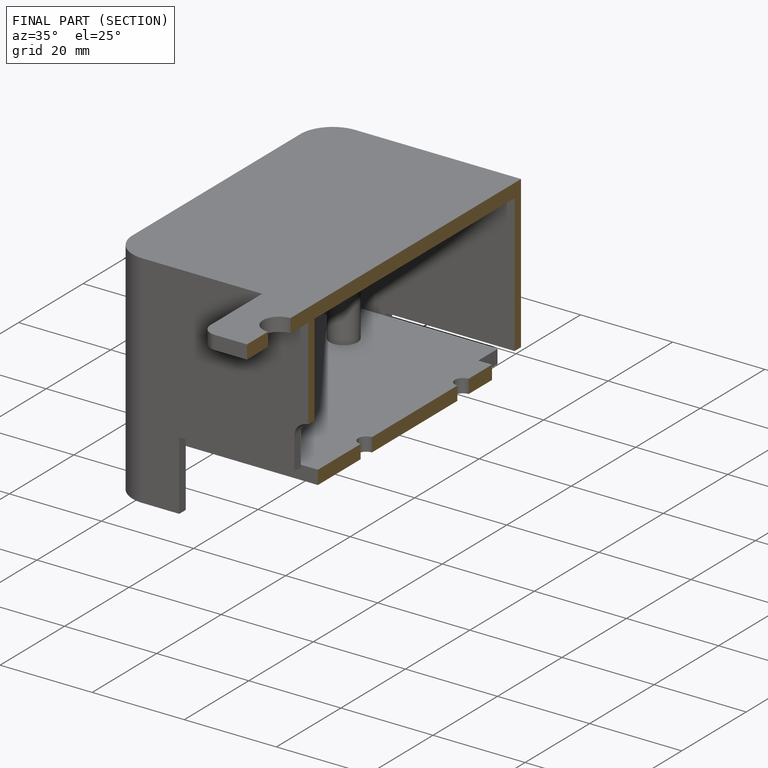
[diagram: finished part — half-section view (interior)]
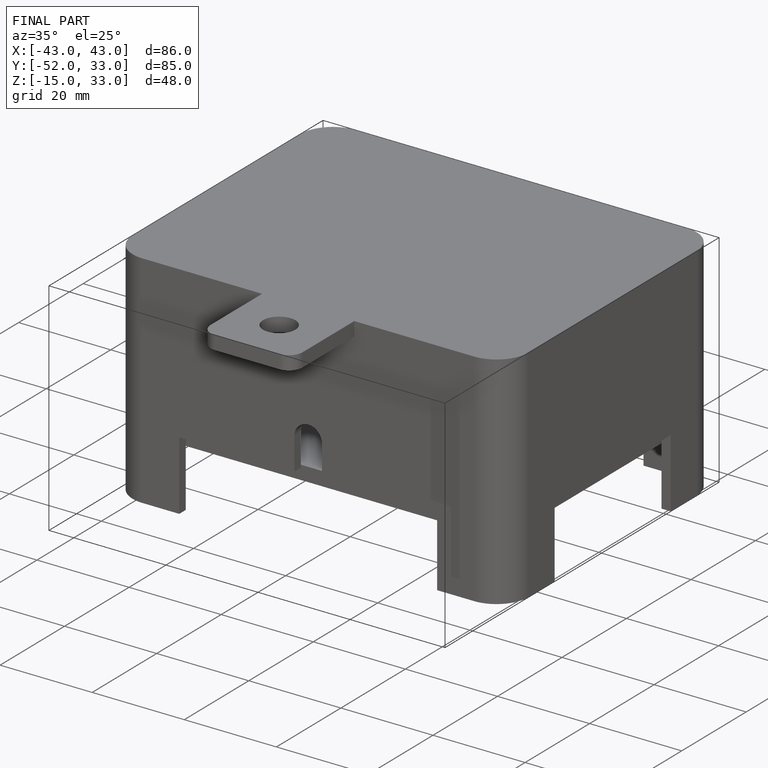
[diagram: finished part — iso view with bounding-box wireframe]
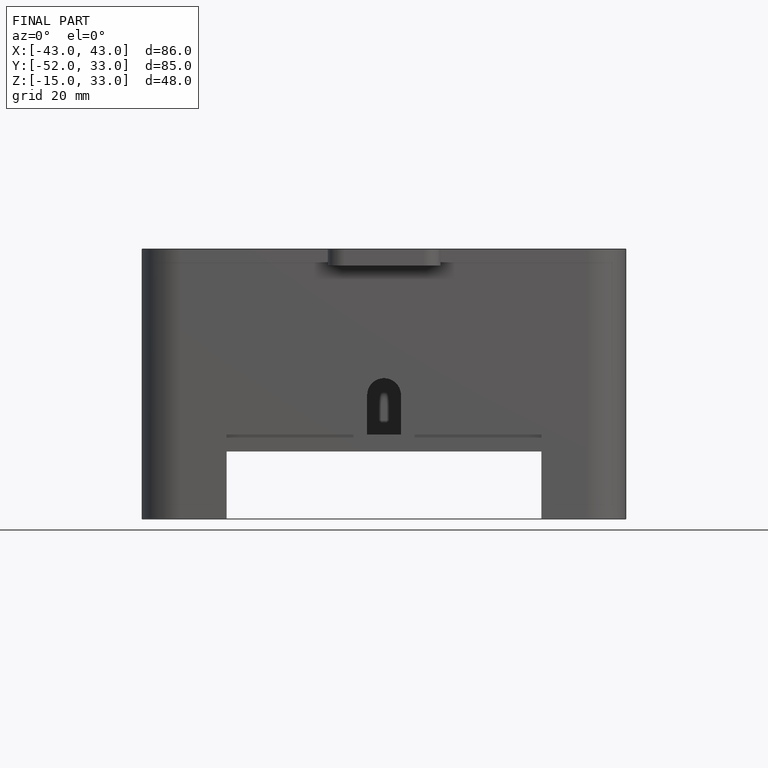
[diagram: finished part — front view with bounding-box wireframe]
